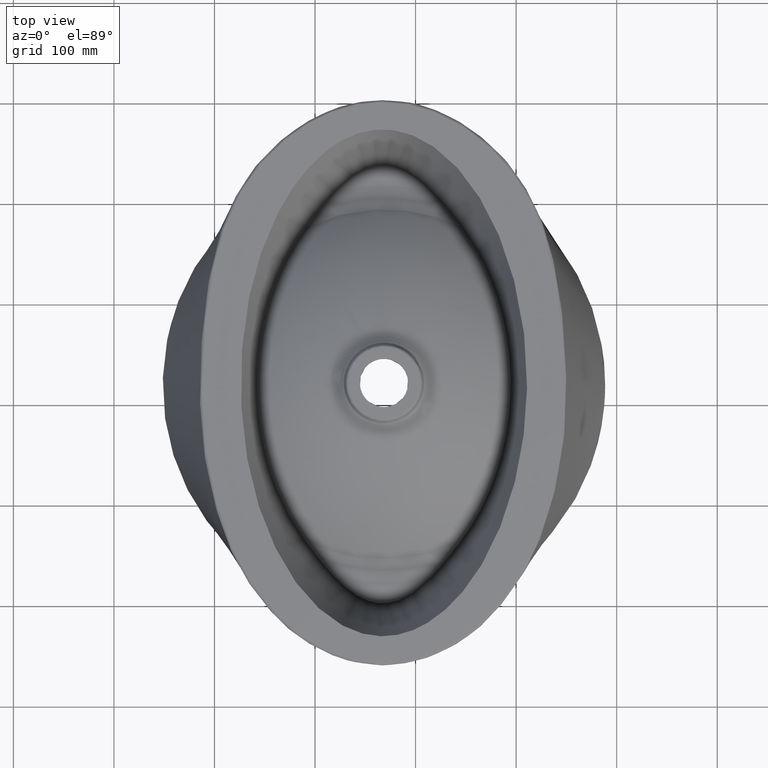
[diagram: clean part render]
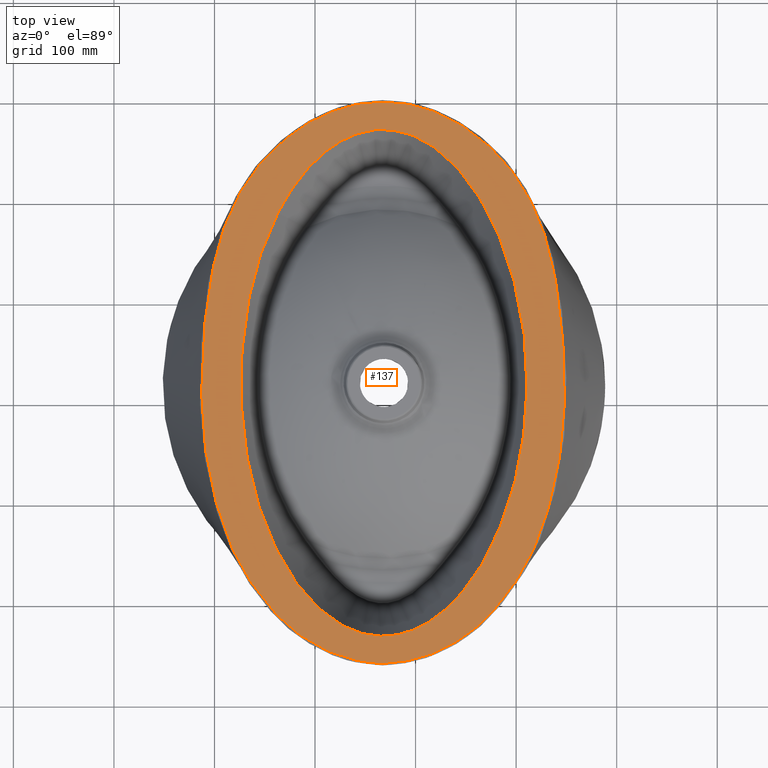
[diagram: same view with one face highlighted and labeled with its STEP entity id]
A machine part, top view. The second image highlights one B-rep face of the part: STEP entity #137.
In plain terms, the highlighted planar face has unit normal (0, 0, 1).
Its self-contained STEP definition (entity closure, byte-faithful):
#137=ADVANCED_FACE('',(#167,#168),#162,.T.);
#162=PLANE('',#421);
#167=FACE_BOUND('',#197,.T.);
#168=FACE_BOUND('',#198,.T.);
#197=EDGE_LOOP('',(#238,#239));
#198=EDGE_LOOP('',(#240));
#238=ORIENTED_EDGE('',*,*,#345,.T.);
#239=ORIENTED_EDGE('',*,*,#346,.T.);
#240=ORIENTED_EDGE('',*,*,#347,.F.);
#316=VERTEX_POINT('',#742);
#317=VERTEX_POINT('',#743);
#318=VERTEX_POINT('',#909);
#345=EDGE_CURVE('',#316,#317,#384,.T.);
#346=EDGE_CURVE('',#317,#316,#385,.T.);
#347=EDGE_CURVE('',#318,#318,#386,.T.);
#384=B_SPLINE_CURVE_WITH_KNOTS('',3,(#690,#691,#692,#693,#694,#695,#696,
#697,#698,#699,#700,#701,#702,#703,#704,#705,#706,#707,#708,#709,#710,#711,
#712,#713,#714,#715,#716,#717,#718,#719,#720,#721,#722,#723,#724,#725,#726,
#727,#728,#729,#730,#731,#732,#733,#734,#735,#736,#737,#738,#739,#740,#741),
 .UNSPECIFIED.,.F.,.F.,(4,2,2,2,2,2,2,2,2,2,2,2,2,2,2,2,2,2,2,2,2,2,2,2,
2,4),(0.,0.0312499999999999,0.0624999999999999,0.0937499999999998,0.125,
0.15625,0.1875,0.25,0.3125,0.375,0.437499999999999,0.499999999999999,0.562499999999999,
0.624999999999999,0.6875,0.71875,0.75,0.78125,0.8125,0.84375,0.875,0.90625,
0.9375,0.96875,0.984375,1.),.UNSPECIFIED.);
#385=B_SPLINE_CURVE_WITH_KNOTS('',3,(#744,#745,#746,#747,#748,#749,#750,
#751,#752,#753,#754,#755,#756,#757,#758,#759,#760,#761,#762,#763,#764,#765,
#766,#767,#768,#769,#770,#771,#772,#773,#774,#775,#776,#777,#778,#779,#780,
#781,#782,#783,#784,#785,#786,#787,#788,#789,#790,#791,#792,#793,#794,#795,
#796,#797),.UNSPECIFIED.,.F.,.F.,(4,2,2,2,2,2,2,2,2,2,2,2,2,2,2,2,2,2,2,
2,2,2,2,2,2,2,4),(0.,0.0156249999999999,0.0312499999999999,0.0624999999999999,
0.0937499999999999,0.125,0.15625,0.1875,0.21875,0.25,0.28125,0.3125,0.34375,
0.375,0.4375,0.5,0.5625,0.625,0.6875,0.71875,0.75,0.8125,0.875,0.90625,
0.9375,0.96875,1.),.UNSPECIFIED.);
#386=B_SPLINE_CURVE_WITH_KNOTS('',3,(#798,#799,#800,#801,#802,#803,#804,
#805,#806,#807,#808,#809,#810,#811,#812,#813,#814,#815,#816,#817,#818,#819,
#820,#821,#822,#823,#824,#825,#826,#827,#828,#829,#830,#831,#832,#833,#834,
#835,#836,#837,#838,#839,#840,#841,#842,#843,#844,#845,#846,#847,#848,#849,
#850,#851,#852,#853,#854,#855,#856,#857,#858,#859,#860,#861,#862,#863,#864,
#865,#866,#867,#868,#869,#870,#871,#872,#873,#874,#875,#876,#877,#878,#879,
#880,#881,#882,#883,#884,#885,#886,#887,#888,#889,#890,#891,#892,#893,#894,
#895,#896,#897,#898,#899,#900,#901,#902,#903,#904,#905,#906,#907,#908),
 .UNSPECIFIED.,.T.,.F.,(1,3,2,2,2,2,2,2,2,2,2,2,2,2,2,2,2,2,2,2,2,2,2,2,
2,2,2,2,3,2,2,2,2,2,2,2,2,2,2,2,2,2,2,2,2,2,2,2,2,2,2,2,2,2,2,3,1),(-0.0269684891355646,
0.,0.00428151086443535,0.0355315108644353,0.0511565108644353,0.0667815108644353,
0.129281510864435,0.160531510864435,0.191781510864435,0.207406510864435,
0.215219010864435,0.223031510864435,0.238656510864435,0.254281510864435,
0.258187760864435,0.262094010864435,0.269906510864435,0.277719010864435,
0.285531510864435,0.293344010864435,0.301156510864435,0.308969010864435,
0.316781510864435,0.348031510864435,0.363656510864435,0.379281510864435,
0.410531510864435,0.441781510864435,0.504281510864435,0.566781510864435,
0.598031510864435,0.629281510864435,0.644906510864435,0.660531510864435,
0.691781510864435,0.699594010864435,0.707406510864435,0.715219010864435,
0.723031510864435,0.730844010864435,0.738656510864435,0.746469010864435,
0.750375260864435,0.754281510864435,0.769906510864435,0.785531510864435,
0.793344010864435,0.801156510864435,0.816781510864435,0.848031510864435,
0.863656510864435,0.879281510864435,0.910531510864435,0.941781510864435,
0.973031510864435,1.,1.00428151086444),.UNSPECIFIED.);
#421=AXIS2_PLACEMENT_3D('',#910,#428,#429);
#428=DIRECTION('',(8.65835387932937E-013,1.8846188453582E-014,1.));
#429=DIRECTION('',(1.,0.,-8.65835181329544E-013));
#690=CARTESIAN_POINT('',(267.689126845283,-459.039415281427,249.999999999963));
#691=CARTESIAN_POINT('',(275.526052353215,-459.074444976756,249.999999999956));
#692=CARTESIAN_POINT('',(283.159962641448,-458.100709855134,249.99999999995));
#693=CARTESIAN_POINT('',(298.248300935572,-455.261407896215,249.999999999937));
#694=CARTESIAN_POINT('',(305.705026234591,-453.407256106937,249.99999999993));
#695=CARTESIAN_POINT('',(320.315209786245,-448.192045179329,249.999999999918));
#696=CARTESIAN_POINT('',(327.400613751542,-444.850325340828,249.999999999911));
#697=CARTESIAN_POINT('',(340.965410727216,-437.407040391342,249.9999999999));
#698=CARTESIAN_POINT('',(347.505194832294,-433.267266721582,249.999999999894));
#699=CARTESIAN_POINT('',(359.952580879863,-423.898191712246,249.999999999883));
#700=CARTESIAN_POINT('',(365.728408687486,-418.696835678574,249.999999999878));
#701=CARTESIAN_POINT('',(376.466246741222,-407.685189794653,249.999999999868));
#702=CARTESIAN_POINT('',(381.486094604943,-401.871391093796,249.999999999864));
#703=CARTESIAN_POINT('',(395.891179299055,-383.852584145628,249.999999999851));
#704=CARTESIAN_POINT('',(404.635383890365,-370.886886652379,249.999999999843));
#705=CARTESIAN_POINT('',(418.676657302294,-343.673290338681,249.99999999983));
#706=CARTESIAN_POINT('',(424.191641257966,-329.422467676609,249.999999999825));
#707=CARTESIAN_POINT('',(433.526005014153,-300.195548462541,249.999999999817));
#708=CARTESIAN_POINT('',(437.299321009466,-285.19140837456,249.999999999813));
#709=CARTESIAN_POINT('',(443.260996631188,-255.213628553537,249.999999999807));
#710=CARTESIAN_POINT('',(445.361287127446,-240.134918910814,249.999999999805));
#711=CARTESIAN_POINT('',(447.807468341391,-209.798543065405,249.999999999803));
#712=CARTESIAN_POINT('',(448.244444116586,-194.550167942641,249.999999999802));
#713=CARTESIAN_POINT('',(447.924976270202,-163.931683624613,249.999999999802));
#714=CARTESIAN_POINT('',(447.140638587048,-148.54951599146,249.999999999802));
#715=CARTESIAN_POINT('',(444.742560986182,-118.04761091481,249.999999999803));
#716=CARTESIAN_POINT('',(443.134479673791,-102.871677523151,249.999999999805));
#717=CARTESIAN_POINT('',(438.400386047327,-72.798202068642,249.999999999808));
#718=CARTESIAN_POINT('',(435.323475576516,-57.8916546377107,249.999999999811));
#719=CARTESIAN_POINT('',(429.183939445827,-35.8113691417023,249.999999999815));
#720=CARTESIAN_POINT('',(426.874139039678,-28.499561544799,249.999999999817));
#721=CARTESIAN_POINT('',(421.421089893088,-14.0288023036153,249.999999999822));
#722=CARTESIAN_POINT('',(418.243813442232,-6.84623276784985,249.999999999824));
#723=CARTESIAN_POINT('',(411.207222555443,6.97801814782352,249.99999999983));
#724=CARTESIAN_POINT('',(407.336232482408,13.6685781625856,249.999999999834));
#725=CARTESIAN_POINT('',(398.876862029539,26.5990281568296,249.999999999841));
#726=CARTESIAN_POINT('',(394.296867713684,32.8441863253479,249.999999999845));
#727=CARTESIAN_POINT('',(384.178818269409,44.7326415888426,249.999999999853));
#728=CARTESIAN_POINT('',(378.680297851684,50.2924900637127,249.999999999858));
#729=CARTESIAN_POINT('',(367.193967190691,60.6568332788092,249.999999999867));
#730=CARTESIAN_POINT('',(361.180752218519,65.5013887955855,249.999999999873));
#731=CARTESIAN_POINT('',(348.572378354399,74.4629534786805,249.999999999883));
#732=CARTESIAN_POINT('',(341.944042350897,78.6018371859792,249.999999999889));
#733=CARTESIAN_POINT('',(328.123772457961,85.889718853402,249.999999999901));
#734=CARTESIAN_POINT('',(321.019874057886,88.9941807714069,249.999999999907));
#735=CARTESIAN_POINT('',(306.432092823299,94.1451466341334,249.999999999919));
#736=CARTESIAN_POINT('',(298.933692876672,96.1836228559662,249.999999999926));
#737=CARTESIAN_POINT('',(287.270224742077,97.9843779252619,249.999999999936));
#738=CARTESIAN_POINT('',(283.36537825048,98.3673308378227,249.999999999939));
#739=CARTESIAN_POINT('',(275.542817638119,98.968988765393,249.999999999946));
#740=CARTESIAN_POINT('',(271.625568921395,99.1936343957669,249.999999999949));
#741=CARTESIAN_POINT('',(267.689346368267,99.1760898994977,249.999999999953));
#742=CARTESIAN_POINT('',(267.689126690418,-459.039449928307,249.999999999963));
#743=CARTESIAN_POINT('',(267.689346214373,99.1761244266302,249.999999999953));
#744=CARTESIAN_POINT('',(267.689346060479,99.1761589537627,249.999999999953));
#745=CARTESIAN_POINT('',(263.786090004317,99.1929165719974,249.999999999956));
#746=CARTESIAN_POINT('',(259.927706840361,98.9729598778539,249.99999999996));
#747=CARTESIAN_POINT('',(252.238970700313,98.3851811231974,249.999999999966));
#748=CARTESIAN_POINT('',(248.409286664552,98.0138302562654,249.999999999969));
#749=CARTESIAN_POINT('',(237.034072865353,96.2992557034426,249.999999999979));
#750=CARTESIAN_POINT('',(229.605896883268,94.3369651758233,249.999999999986));
#751=CARTESIAN_POINT('',(214.972274573986,89.2374365183691,249.999999999999));
#752=CARTESIAN_POINT('',(207.778407221876,86.1198676849972,250.000000000005));
#753=CARTESIAN_POINT('',(194.106463850082,78.981901634396,250.000000000017));
#754=CARTESIAN_POINT('',(187.561248788986,74.9407329773892,250.000000000022));
#755=CARTESIAN_POINT('',(174.955547895722,66.071200608666,250.000000000034));
#756=CARTESIAN_POINT('',(168.8670525068,61.2146896707444,250.000000000039));
#757=CARTESIAN_POINT('',(157.301822119727,50.8645150168457,250.000000000049));
#758=CARTESIAN_POINT('',(151.856584013265,45.4043502925011,250.000000000054));
#759=CARTESIAN_POINT('',(141.815798351573,33.7660480465557,250.000000000063));
#760=CARTESIAN_POINT('',(137.218023153997,27.589792841528,250.000000000067));
#761=CARTESIAN_POINT('',(128.672114180216,14.6883474482145,250.000000000075));
#762=CARTESIAN_POINT('',(124.725880603457,7.9500577652119,250.000000000078));
#763=CARTESIAN_POINT('',(117.658809890005,-5.75030038008904,250.000000000084));
#764=CARTESIAN_POINT('',(114.510500342028,-12.7507164111831,250.000000000088));
#765=CARTESIAN_POINT('',(109.002732118829,-27.0591980469374,250.000000000092));
#766=CARTESIAN_POINT('',(106.64250585289,-34.366964293424,250.000000000095));
#767=CARTESIAN_POINT('',(102.448211157962,-49.1876968308627,250.000000000099));
#768=CARTESIAN_POINT('',(100.61090135734,-56.7225826607556,250.0000000001));
#769=CARTESIAN_POINT('',(97.3671408238175,-71.8281951701143,250.000000000104));
#770=CARTESIAN_POINT('',(95.959317692506,-79.396951867602,250.000000000105));
#771=CARTESIAN_POINT('',(92.329630737746,-102.147467590171,250.000000000109));
#772=CARTESIAN_POINT('',(90.7002924707192,-117.373378588884,250.00000000011));
#773=CARTESIAN_POINT('',(88.279199349014,-147.887613017869,250.000000000113));
#774=CARTESIAN_POINT('',(87.4810288243265,-163.175458385229,250.000000000114));
#775=CARTESIAN_POINT('',(87.1192694121751,-193.843143828535,250.000000000115));
#776=CARTESIAN_POINT('',(87.5368645113438,-209.260820320476,250.000000000115));
#777=CARTESIAN_POINT('',(89.9964670404692,-240.045990766554,250.000000000113));
#778=CARTESIAN_POINT('',(92.1206670575238,-255.257734466699,250.000000000111));
#779=CARTESIAN_POINT('',(98.1093004835785,-285.329358164234,250.000000000107));
#780=CARTESIAN_POINT('',(101.852189652991,-300.21381360443,250.000000000104));
#781=CARTESIAN_POINT('',(108.898705077368,-322.250919086322,250.000000000098));
#782=CARTESIAN_POINT('',(111.500073715836,-329.553877727611,250.000000000096));
#783=CARTESIAN_POINT('',(117.233299016339,-343.815012975866,250.000000000091));
#784=CARTESIAN_POINT('',(120.367750685134,-350.800273223716,250.000000000089));
#785=CARTESIAN_POINT('',(130.904477922636,-371.141179606743,250.00000000008));
#786=CARTESIAN_POINT('',(139.503266566667,-383.880879944526,250.000000000073));
#787=CARTESIAN_POINT('',(158.853180638161,-408.055711778985,250.000000000057));
#788=CARTESIAN_POINT('',(169.324905491007,-419.298674004356,250.000000000048));
#789=CARTESIAN_POINT('',(187.813716112306,-433.215440153829,250.000000000032));
#790=CARTESIAN_POINT('',(194.445551529845,-437.419904779221,250.000000000026));
#791=CARTESIAN_POINT('',(207.972664410019,-444.839736648349,250.000000000015));
#792=CARTESIAN_POINT('',(214.909572052792,-448.111733068454,250.000000000009));
#793=CARTESIAN_POINT('',(229.321419210739,-453.296550704381,249.999999999996));
#794=CARTESIAN_POINT('',(236.804516861531,-455.188762851829,249.99999999999));
#795=CARTESIAN_POINT('',(252.121000363374,-458.08828968884,249.999999999977));
#796=CARTESIAN_POINT('',(259.865863860092,-459.073102160241,249.99999999997));
#797=CARTESIAN_POINT('',(267.689126535552,-459.039484575187,249.999999999963));
#798=CARTESIAN_POINT('',(410.861279633739,-185.274430849404,249.999999998839));
#799=CARTESIAN_POINT('',(410.884941550949,-183.475941373242,249.999999998839));
#800=CARTESIAN_POINT('',(410.896450455476,-181.677304419626,249.999999998839));
#801=CARTESIAN_POINT('',(410.890579119985,-166.750819920167,249.999999998839));
#802=CARTESIAN_POINT('',(410.239890473487,-153.62374186024,249.999999999204));
#803=CARTESIAN_POINT('',(408.325662749984,-134.025012082196,249.999999998658));
#804=CARTESIAN_POINT('',(407.531035457431,-127.507290360068,249.999999998841));
#805=CARTESIAN_POINT('',(405.632734146559,-114.516689696315,249.999999998841));
#806=CARTESIAN_POINT('',(404.530385670913,-108.043437760707,249.999999998844));
#807=CARTESIAN_POINT('',(398.23778454581,-75.8306234896272,249.999999998844));
#808=CARTESIAN_POINT('',(390.678842866793,-50.5005749900969,249.999999998863));
#809=CARTESIAN_POINT('',(374.553028631571,-14.5706461440374,249.999999998863));
#810=CARTESIAN_POINT('',(368.401720988897,-2.92812326834804,249.999999999243));
#811=CARTESIAN_POINT('',(354.184002576307,19.1436404639481,249.999999998514));
#812=CARTESIAN_POINT('',(346.079556371138,29.5674794377433,249.999999998534));
#813=CARTESIAN_POINT('',(332.184758591551,43.5215924688686,249.999999999081));
#814=CARTESIAN_POINT('',(327.268217903309,47.8932961128815,249.999999998912));
#815=CARTESIAN_POINT('',(319.43757300113,53.864978494571,249.999999998912));
#816=CARTESIAN_POINT('',(316.751340665765,55.7582029180933,249.999999998827));
#817=CARTESIAN_POINT('',(311.224761363634,59.301105669824,249.999999999009));
#818=CARTESIAN_POINT('',(308.384270078698,60.9507287635055,249.999999998925));
#819=CARTESIAN_POINT('',(299.629449517308,65.4611139958919,249.999999998925));
#820=CARTESIAN_POINT('',(293.486532073804,67.884830432446,249.999999998941));
#821=CARTESIAN_POINT('',(280.791146918012,71.2407456618111,249.999999998941));
#822=CARTESIAN_POINT('',(274.233968014794,72.1718962487954,249.999999998958));
#823=CARTESIAN_POINT('',(266.030442664718,72.2275732781434,249.999999998958));
#824=CARTESIAN_POINT('',(264.389367931813,72.1825908101824,249.999999998917));
#825=CARTESIAN_POINT('',(261.113152957676,71.9820616233729,249.999999999008));
#826=CARTESIAN_POINT('',(259.47803876146,71.8270770273422,249.999999998921));
#827=CARTESIAN_POINT('',(254.591983192244,71.2068678939343,249.999999999058));
#828=CARTESIAN_POINT('',(251.361594505691,70.5875572060527,249.999999999066));
#829=CARTESIAN_POINT('',(244.999516121262,68.9752958645884,249.999999998884));
#830=CARTESIAN_POINT('',(241.86679256039,67.9809583468153,249.999999998983));
#831=CARTESIAN_POINT('',(235.731943269485,65.646778366738,249.999999998983));
#832=CARTESIAN_POINT('',(232.729146489459,64.3079359443076,249.999999998991));
#833=CARTESIAN_POINT('',(226.877713981319,61.3311586263287,249.999999998991));
#834=CARTESIAN_POINT('',(224.030218504822,59.6928932665114,249.999999998998));
#835=CARTESIAN_POINT('',(218.49297815373,56.1678601260291,249.999999998998));
#836=CARTESIAN_POINT('',(215.803412848022,54.2821758955296,249.999999999006));
#837=CARTESIAN_POINT('',(210.580043348902,50.3076778403109,249.999999999006));
#838=CARTESIAN_POINT('',(208.045907389683,48.2178347644447,249.999999999103));
#839=CARTESIAN_POINT('',(203.127736254594,43.8679507092843,249.999999998921));
#840=CARTESIAN_POINT('',(200.743526929509,41.6090780492721,249.999999999019));
#841=CARTESIAN_POINT('',(189.188185315429,29.9569379725529,249.999999999019));
#842=CARTESIAN_POINT('',(181.13705504925,19.48839753717,249.99999999904));
#843=CARTESIAN_POINT('',(170.576705787087,2.8670408274765,249.99999999904));
#844=CARTESIAN_POINT('',(167.306368898298,-2.82858379490166,249.999999999049));
#845=CARTESIAN_POINT('',(161.198345485939,-14.4492430350731,249.999999999049));
#846=CARTESIAN_POINT('',(158.356816333964,-20.3712630284575,249.999999999057));
#847=CARTESIAN_POINT('',(150.432315324257,-38.4004182467265,249.999999999057));
#848=CARTESIAN_POINT('',(145.961644948201,-50.7702917895781,249.999999999434));
#849=CARTESIAN_POINT('',(138.47987323671,-75.938236244454,249.999999998705));
#850=CARTESIAN_POINT('',(135.458304245922,-88.7351239139262,249.999999999078));
#851=CARTESIAN_POINT('',(128.315328939353,-127.466733919806,249.999999999078));
#852=CARTESIAN_POINT('',(126.138645854781,-153.743459928448,249.999999999085));
#853=CARTESIAN_POINT('',(126.137126142815,-180.00000662902,249.999999999085));
#854=CARTESIAN_POINT('',(126.135606430849,-206.256553329592,249.999999999085));
#855=CARTESIAN_POINT('',(128.322303469364,-232.533092037967,249.999999999809));
#856=CARTESIAN_POINT('',(135.468928077678,-271.262100130553,249.999999998716));
#857=CARTESIAN_POINT('',(138.486365140764,-284.055826100458,249.999999999074));
#858=CARTESIAN_POINT('',(145.980200233251,-309.221852969139,249.999999999074));
#859=CARTESIAN_POINT('',(150.458729765625,-321.593962384772,249.999999999063));
#860=CARTESIAN_POINT('',(158.387927788674,-339.618081619115,249.999999999063));
#861=CARTESIAN_POINT('',(161.231662793659,-345.538642078668,249.999999999055));
#862=CARTESIAN_POINT('',(167.347843446715,-357.158086069196,249.999999999055));
#863=CARTESIAN_POINT('',(170.623009613531,-362.853170943194,249.999999999047));
#864=CARTESIAN_POINT('',(181.194241640159,-379.462864122777,249.999999999047));
#865=CARTESIAN_POINT('',(189.251823461331,-389.927018370065,249.999999999027));
#866=CARTESIAN_POINT('',(200.818367692675,-401.567298580979,249.999999999027));
#867=CARTESIAN_POINT('',(203.205392889718,-403.822035300523,249.999999999021));
#868=CARTESIAN_POINT('',(208.129557444013,-408.162283792829,249.999999999021));
#869=CARTESIAN_POINT('',(210.666523082693,-410.249276273221,249.999999999014));
#870=CARTESIAN_POINT('',(215.894229123323,-414.223104156279,249.999999999014));
#871=CARTESIAN_POINT('',(218.585181845968,-416.108129823326,249.999999999007));
#872=CARTESIAN_POINT('',(224.12708766217,-419.625228885031,249.999999999007));
#873=CARTESIAN_POINT('',(226.979956395602,-421.256786109993,249.999999999091));
#874=CARTESIAN_POINT('',(232.838595380768,-424.221248432313,249.999999998909));
#875=CARTESIAN_POINT('',(235.842964260095,-425.554531131561,249.999999998992));
#876=CARTESIAN_POINT('',(241.980412094874,-427.881350161194,249.999999998992));
#877=CARTESIAN_POINT('',(245.114628998227,-428.874659093011,249.999999999075));
#878=CARTESIAN_POINT('',(251.484562834425,-430.480844434368,249.999999998893));
#879=CARTESIAN_POINT('',(254.718239803717,-431.094128493983,249.999999998885));
#880=CARTESIAN_POINT('',(259.605040570668,-431.70209874598,249.999999999021));
#881=CARTESIAN_POINT('',(261.24002171189,-431.85276285705,249.999999999017));
#882=CARTESIAN_POINT('',(264.515949137778,-432.045565312926,249.999999998926));
#883=CARTESIAN_POINT('',(266.156942793826,-432.08726624242,249.999999998967));
#884=CARTESIAN_POINT('',(274.360830251514,-432.019280652645,249.999999998967));
#885=CARTESIAN_POINT('',(280.912523197644,-431.081679847577,249.99999999895));
#886=CARTESIAN_POINT('',(293.601919269849,-427.704645673742,249.99999999895));
#887=CARTESIAN_POINT('',(299.738035858593,-425.272376000366,249.999999999117));
#888=CARTESIAN_POINT('',(308.492305917388,-420.755445781768,249.999999998843));
#889=CARTESIAN_POINT('',(311.3342688756,-419.104556430149,249.999999998927));
#890=CARTESIAN_POINT('',(316.856596459454,-415.557331690113,249.999999998927));
#891=CARTESIAN_POINT('',(319.539003400238,-413.661656563962,249.999999999011));
#892=CARTESIAN_POINT('',(327.362093673176,-407.684180551487,249.999999998738));
#893=CARTESIAN_POINT('',(332.278323358468,-403.31045915251,249.999999998907));
#894=CARTESIAN_POINT('',(346.167656455602,-389.347695833303,249.999999998907));
#895=CARTESIAN_POINT('',(354.262980775069,-378.922029664534,249.999999998885));
#896=CARTESIAN_POINT('',(364.922836568869,-362.361542821732,249.999999998885));
#897=CARTESIAN_POINT('',(368.233754852735,-356.688413401819,249.999999998876));
#898=CARTESIAN_POINT('',(374.4242274964,-345.111974974573,249.999999998876));
#899=CARTESIAN_POINT('',(377.305568403227,-339.20933575104,249.999999999051));
#900=CARTESIAN_POINT('',(385.363679119004,-321.241511231198,249.999999998504));
#901=CARTESIAN_POINT('',(389.940839579866,-308.9103503139,249.999999998856));
#902=CARTESIAN_POINT('',(397.652875480768,-283.811589254727,249.999999998856));
#903=CARTESIAN_POINT('',(400.795994554466,-271.043716283971,249.999999998847));
#904=CARTESIAN_POINT('',(405.823928720363,-245.276662430061,249.999999998847));
#905=CARTESIAN_POINT('',(407.711676897237,-232.269914463091,249.999999998841));
#906=CARTESIAN_POINT('',(410.081021848977,-207.925321831864,249.999999998841));
#907=CARTESIAN_POINT('',(410.712237349973,-196.602801939432,249.999999998839));
#908=CARTESIAN_POINT('',(410.861279633739,-185.274430849404,249.999999998839));
#909=CARTESIAN_POINT('',(410.861279634261,-185.274430849411,250.000000000131));
#910=CARTESIAN_POINT('',(268.574236341126,-179.930016787353,249.999999999957));